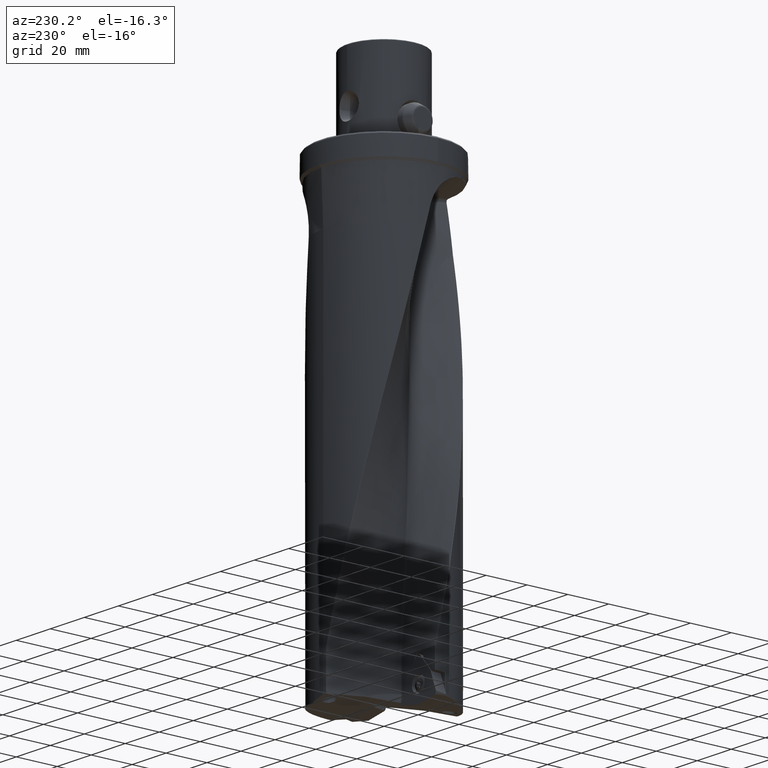
[diagram: clean part render]
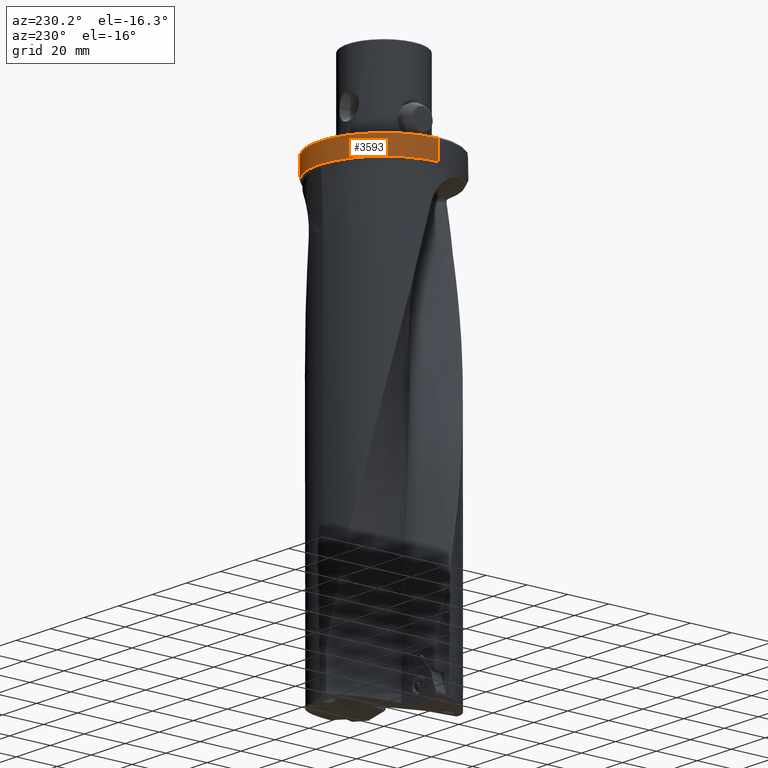
[diagram: same view with one face highlighted and labeled with its STEP entity id]
A machine part, auxiliary view. The second image highlights one B-rep face of the part: STEP entity #3593.
In plain terms, the highlighted cylindrical surface (partial cylindrical patch) has radius 31.75 mm, axis along (-0, -0, 1).
Its self-contained STEP definition (entity closure, byte-faithful):
#1999=EDGE_CURVE('NONE',#2727,#4483,#5554,.F.);
#2023=EDGE_CURVE('NONE',#4305,#4483,#5583,.T.);
#2727=VERTEX_POINT('NONE',#6363);
#3593=ADVANCED_FACE('NONE',(#7317),#7318,.T.);
#3811=VERTEX_POINT('NONE',#7560);
#4017=EDGE_CURVE('NONE',#4811,#2727,#7788,.T.);
#4305=VERTEX_POINT('NONE',#8116);
#4483=VERTEX_POINT('NONE',#8317);
#4811=VERTEX_POINT('NONE',#8672);
#4969=EDGE_CURVE('NONE',#3811,#4305,#8841,.F.);
#5063=EDGE_CURVE('NONE',#4811,#3811,#8945,.T.);
#5554=CIRCLE('',#11131,31.75);
#5583=LINE('',#13755,#13756);
#6363=CARTESIAN_POINT('',(31.75,-7.17168905099881E-014,-0.749999999999964));
#7317=FACE_OUTER_BOUND('',#34161,.T.);
#7318=CYLINDRICAL_SURFACE('',#34162,31.75);
#7560=CARTESIAN_POINT('',(0.0,31.75,-9.99999999999997));
#7788=LINE('',#38396,#38397);
#8116=CARTESIAN_POINT('',(-31.75,7.94931408567602E-014,-9.99999999999997));
#8317=CARTESIAN_POINT('',(-31.75,7.56050156833742E-014,-0.749999999999964));
#8672=CARTESIAN_POINT('',(31.75,-7.56050156833742E-014,-9.99999999999997));
#8841=CIRCLE('',#48830,31.75);
#8945=CIRCLE('',#48984,31.75);
#11131=AXIS2_PLACEMENT_3D('',#52799,#52800,#52801);
#13755=CARTESIAN_POINT('',(-31.75,7.94931408567602E-014,40.0));
#13756=VECTOR('',#52841,1000.0);
#34161=EDGE_LOOP('',(#54827,#54828,#54829,#54830,#54831));
#34162=AXIS2_PLACEMENT_3D('',#54832,#54833,#54834);
#38396=CARTESIAN_POINT('',(31.75,-7.56050156833742E-014,40.0));
#38397=VECTOR('',#55393,1000.0);
#48830=AXIS2_PLACEMENT_3D('',#56579,#56580,#56581);
#48984=AXIS2_PLACEMENT_3D('',#56694,#56695,#56696);
#52799=CARTESIAN_POINT('',(0.0,0.0,-0.749999999999964));
#52800=DIRECTION('',(0.0,0.0,-1.0));
#52801=DIRECTION('',(1.0,-2.38126033648423E-015,0.0));
#52841=DIRECTION('',(0.0,0.0,1.0));
#54827=ORIENTED_EDGE('',*,*,#5063,.T.);
#54828=ORIENTED_EDGE('',*,*,#4969,.T.);
#54829=ORIENTED_EDGE('',*,*,#2023,.T.);
#54830=ORIENTED_EDGE('',*,*,#1999,.F.);
#54831=ORIENTED_EDGE('',*,*,#4017,.F.);
#54832=CARTESIAN_POINT('',(0.0,0.0,40.0));
#54833=DIRECTION('',(-0.0,-0.0,1.0));
#54834=DIRECTION('',(1.0,-2.38126033648423E-015,0.0));
#55393=DIRECTION('',(0.0,0.0,1.0));
#56579=CARTESIAN_POINT('',(0.0,0.0,-10.0));
#56580=DIRECTION('',(0.0,0.0,-1.0));
#56581=DIRECTION('',(1.0,-2.38126033648423E-015,0.0));
#56694=CARTESIAN_POINT('',(0.0,0.0,-10.0));
#56695=DIRECTION('',(0.0,-0.0,1.0));
#56696=DIRECTION('',(1.0,-2.38126033648423E-015,-0.0));